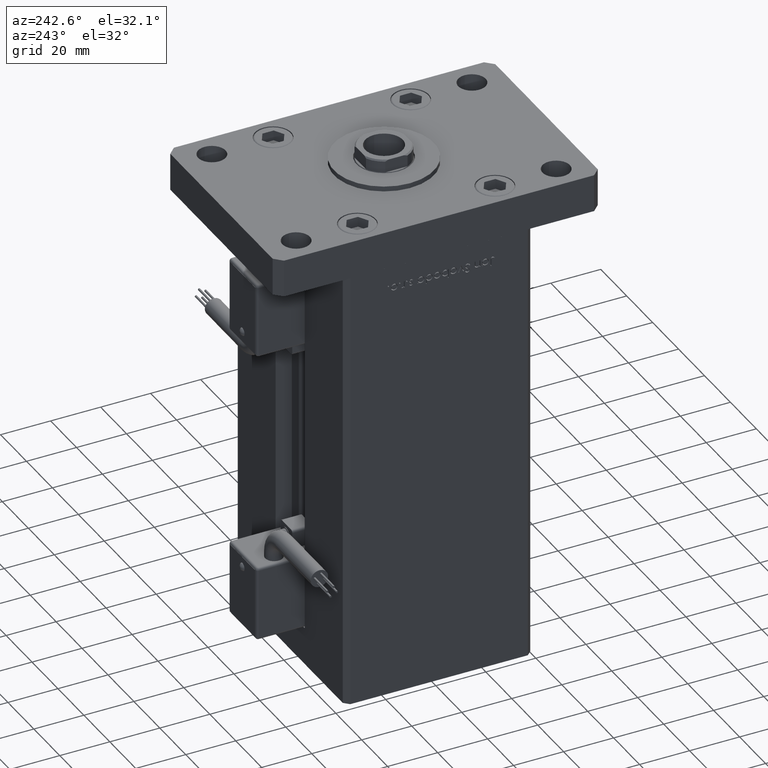
[diagram: clean part render]
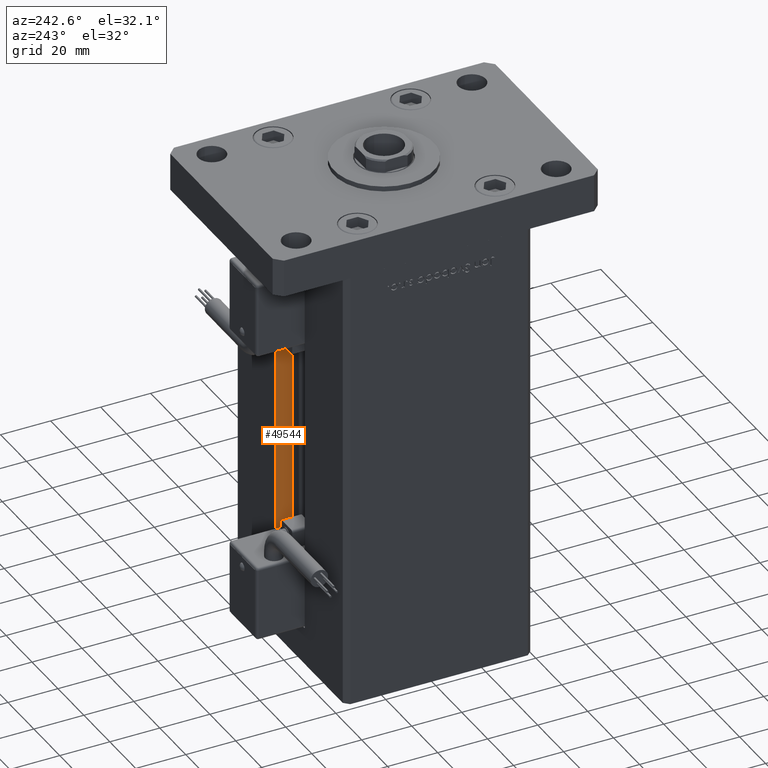
[diagram: same view with one face highlighted and labeled with its STEP entity id]
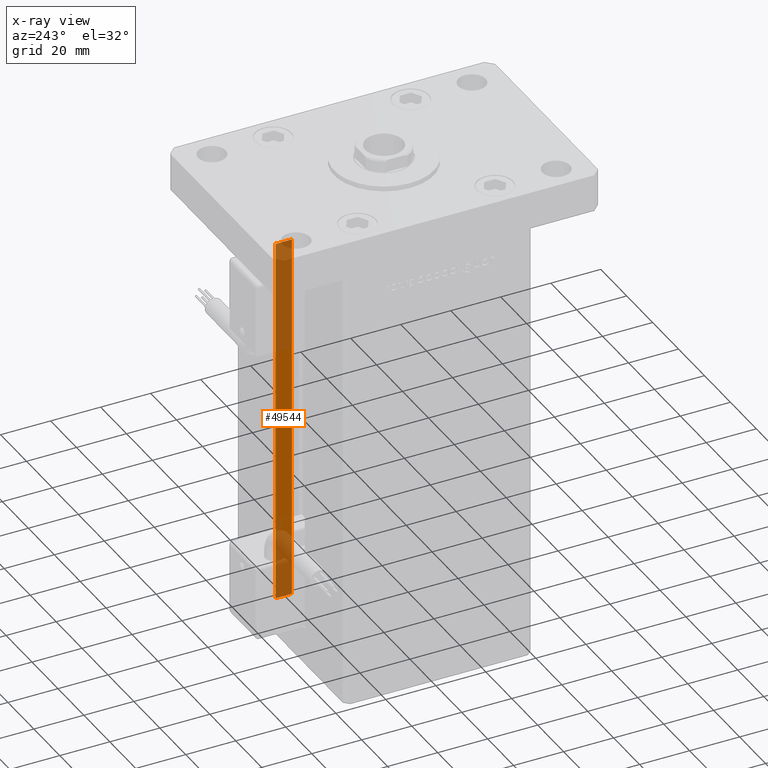
[diagram: x-ray of the same camera — body ghosted, the highlighted face saturated]
A machine part, auxiliary view. The second image highlights one B-rep face of the part: STEP entity #49544.
The next image is the same camera in x-ray: the body ghosted, the highlighted face saturated — about 48% of this face is hidden behind the body in this view.
In plain terms, the highlighted planar face has unit normal (1, 0, 0).
Its self-contained STEP definition (entity closure, byte-faithful):
#471 = VECTOR ( 'NONE', #46205, 1000.000000000000000 ) ;
#2117 = CARTESIAN_POINT ( 'NONE',  ( 11.25000000000000000, 37.50000000000000000, 0.000000000000000000 ) ) ;
#2309 = CARTESIAN_POINT ( 'NONE',  ( 11.25000000000000000, 37.50000000000000000, 0.000000000000000000 ) ) ;
#6116 = CARTESIAN_POINT ( 'NONE',  ( 11.24999999999999289, 37.50000000000000000, 148.5000000000000000 ) ) ;
#8431 = CARTESIAN_POINT ( 'NONE',  ( 11.25000000000000000, 30.99999999999999289, 0.000000000000000000 ) ) ;
#10295 = DIRECTION ( 'NONE',  ( -0.000000000000000000, -0.000000000000000000, 1.000000000000000000 ) ) ;
#10466 = CARTESIAN_POINT ( 'NONE',  ( 11.25000000000000000, 30.99999999999999289, 0.000000000000000000 ) ) ;
#11785 = ORIENTED_EDGE ( 'NONE', *, *, #41566, .T. ) ;
#12255 = ORIENTED_EDGE ( 'NONE', *, *, #37693, .F. ) ;
#12321 = CARTESIAN_POINT ( 'NONE',  ( 11.25000000000000000, 30.99999999999999289, 0.000000000000000000 ) ) ;
#12333 = EDGE_CURVE ( 'NONE', #18232, #50890, #15697, .T. ) ;
#14186 = PLANE ( 'NONE',  #17811 ) ;
#15426 = LINE ( 'NONE', #2309, #36094 ) ;
#15697 = LINE ( 'NONE', #28817, #471 ) ;
#16600 = EDGE_CURVE ( 'NONE', #43087, #18232, #15426, .T. ) ;
#16759 = VECTOR ( 'NONE', #10295, 1000.000000000000000 ) ;
#17811 = AXIS2_PLACEMENT_3D ( 'NONE', #10466, #31569, #54085 ) ;
#18232 = VERTEX_POINT ( 'NONE', #6116 ) ;
#21001 = LINE ( 'NONE', #8431, #22063 ) ;
#21147 = ORIENTED_EDGE ( 'NONE', *, *, #16600, .F. ) ;
#22063 = VECTOR ( 'NONE', #46382, 1000.000000000000000 ) ;
#23418 = LINE ( 'NONE', #44519, #16759 ) ;
#24446 = VERTEX_POINT ( 'NONE', #12321 ) ;
#28817 = CARTESIAN_POINT ( 'NONE',  ( 11.25000000000000000, 0.000000000000000000, 148.5000000000000000 ) ) ;
#29885 = CARTESIAN_POINT ( 'NONE',  ( 11.25000000000000000, 30.99999999999999289, 148.5000000000000000 ) ) ;
#31569 = DIRECTION ( 'NONE',  ( 1.000000000000000000, -0.000000000000000000, 0.000000000000000000 ) ) ;
#34375 = EDGE_LOOP ( 'NONE', ( #21147, #12255, #11785, #37080 ) ) ;
#35823 = FACE_OUTER_BOUND ( 'NONE', #34375, .T. ) ;
#36094 = VECTOR ( 'NONE', #37064, 1000.000000000000000 ) ;
#37064 = DIRECTION ( 'NONE',  ( -0.000000000000000000, -0.000000000000000000, 1.000000000000000000 ) ) ;
#37080 = ORIENTED_EDGE ( 'NONE', *, *, #12333, .F. ) ;
#37693 = EDGE_CURVE ( 'NONE', #24446, #43087, #21001, .T. ) ;
#41566 = EDGE_CURVE ( 'NONE', #24446, #50890, #23418, .T. ) ;
#43087 = VERTEX_POINT ( 'NONE', #2117 ) ;
#44519 = CARTESIAN_POINT ( 'NONE',  ( 11.25000000000000000, 30.99999999999999289, 0.000000000000000000 ) ) ;
#46205 = DIRECTION ( 'NONE',  ( -0.000000000000000000, -1.000000000000000000, 0.000000000000000000 ) ) ;
#46382 = DIRECTION ( 'NONE',  ( 0.000000000000000000, 1.000000000000000000, 0.000000000000000000 ) ) ;
#49544 = ADVANCED_FACE ( 'NONE', ( #35823 ), #14186, .F. ) ;
#50890 = VERTEX_POINT ( 'NONE', #29885 ) ;
#54085 = DIRECTION ( 'NONE',  ( 0.000000000000000000, 0.000000000000000000, -1.000000000000000000 ) ) ;